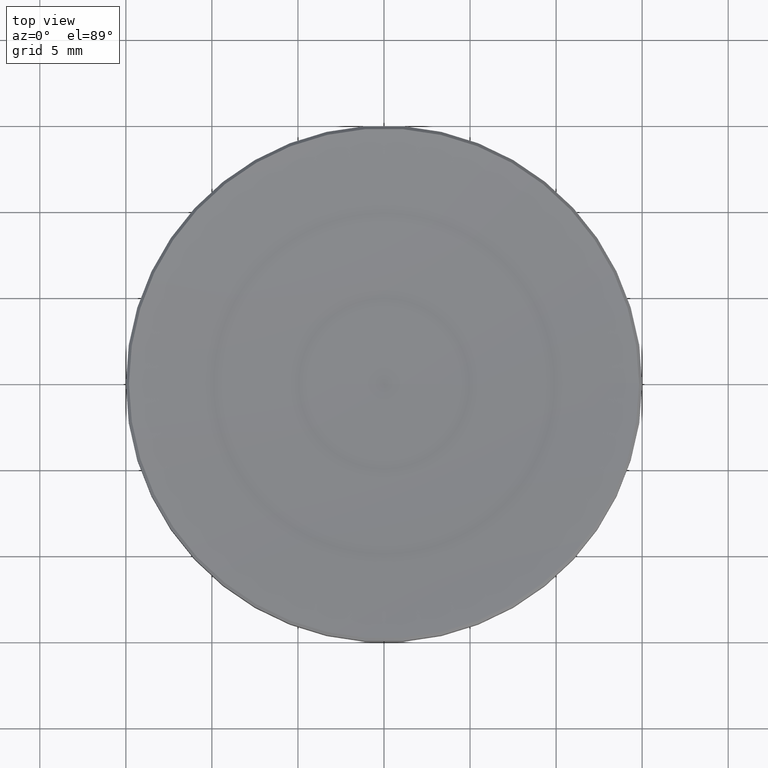
[diagram: clean part render]
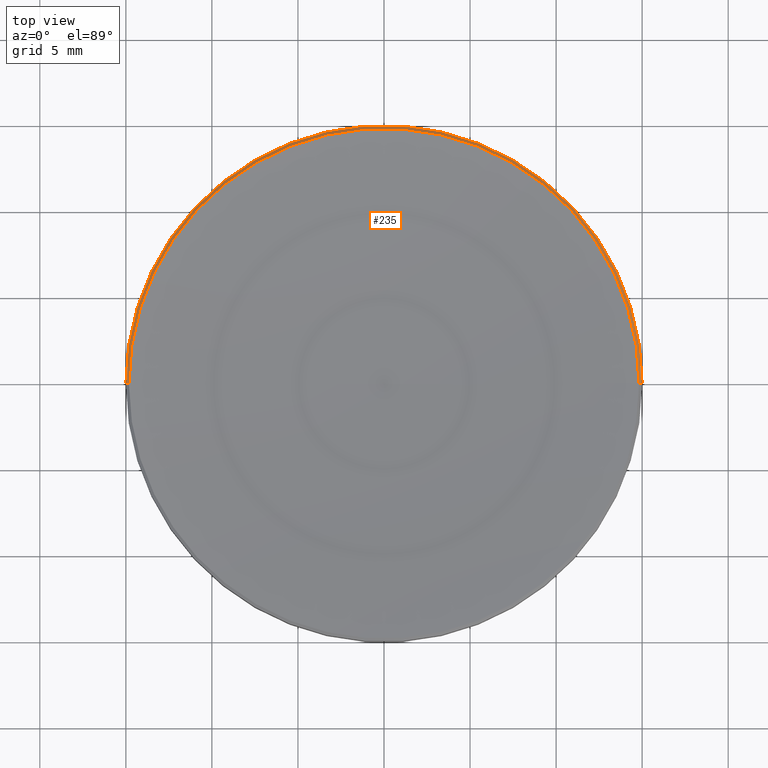
[diagram: same view with one face highlighted and labeled with its STEP entity id]
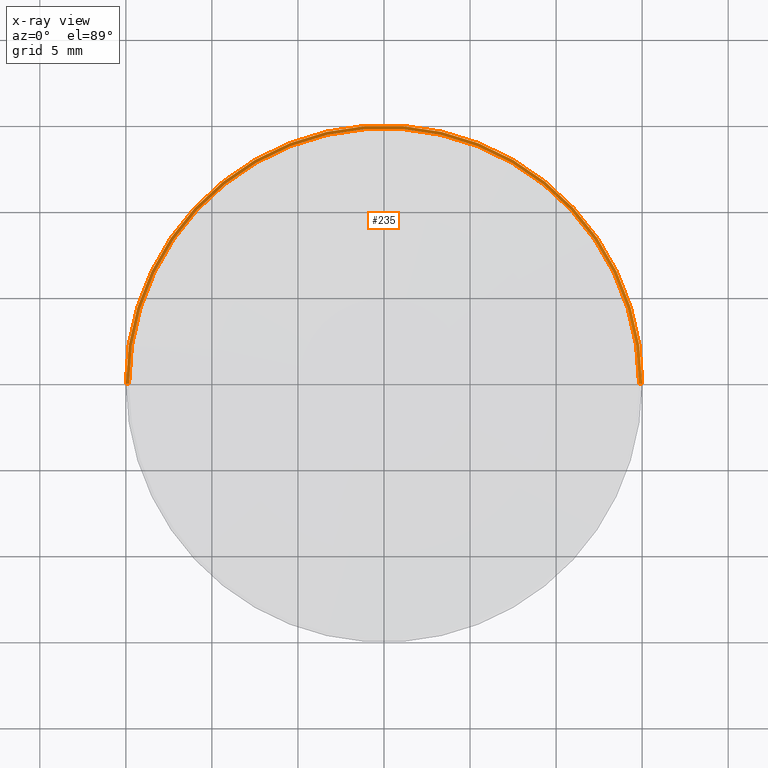
[diagram: x-ray of the same camera — body ghosted, the highlighted face saturated]
A machine part, top view. The second image highlights one B-rep face of the part: STEP entity #235.
The next image is the same camera in x-ray: the body ghosted, the highlighted face saturated — about 0% of this face is hidden behind the body in this view.
In plain terms, the highlighted conical surface has half-angle 45 deg.
Its self-contained STEP definition (entity closure, byte-faithful):
#4 = DIRECTION ( 'NONE',  ( 1.000000000000000000, 0.000000000000000000, 0.000000000000000000 ) ) ;
#18 = CARTESIAN_POINT ( 'NONE',  ( 14.82077471085186993, 1.815021431052878250E-15, 3.349225289148161089 ) ) ;
#22 = DIRECTION ( 'NONE',  ( 0.000000000000000000, 0.000000000000000000, -1.000000000000000000 ) ) ;
#47 = ORIENTED_EDGE ( 'NONE', *, *, #49, .F. ) ;
#49 = EDGE_CURVE ( 'NONE', #106, #146, #115, .T. ) ;
#52 = AXIS2_PLACEMENT_3D ( 'NONE', #101, #22, #245 ) ;
#53 = CARTESIAN_POINT ( 'NONE',  ( 0.000000000000000000, 0.000000000000000000, 3.349225289148161089 ) ) ;
#72 = AXIS2_PLACEMENT_3D ( 'NONE', #53, #124, #4 ) ;
#73 = CIRCLE ( 'NONE', #128, 15.00000000000000000 ) ;
#78 = EDGE_CURVE ( 'NONE', #146, #171, #93, .T. ) ;
#83 = CARTESIAN_POINT ( 'NONE',  ( -15.00000000000000000, 1.836970198721029589E-15, 3.170000000000006146 ) ) ;
#87 = EDGE_LOOP ( 'NONE', ( #47, #234, #253, #145 ) ) ;
#93 = LINE ( 'NONE', #223, #208 ) ;
#97 = DIRECTION ( 'NONE',  ( 0.7071067811864962804, 8.659560562354306700E-17, -0.7071067811865988650 ) ) ;
#101 = CARTESIAN_POINT ( 'NONE',  ( 0.000000000000000000, 0.000000000000000000, 3.349225289148161089 ) ) ;
#106 = VERTEX_POINT ( 'NONE', #264 ) ;
#115 = CIRCLE ( 'NONE', #72, 14.82077471085190723 ) ;
#119 = EDGE_CURVE ( 'NONE', #106, #126, #152, .T. ) ;
#124 = DIRECTION ( 'NONE',  ( -0.000000000000000000, -0.000000000000000000, 1.000000000000000000 ) ) ;
#126 = VERTEX_POINT ( 'NONE', #241 ) ;
#128 = AXIS2_PLACEMENT_3D ( 'NONE', #249, #204, #159 ) ;
#145 = ORIENTED_EDGE ( 'NONE', *, *, #78, .F. ) ;
#146 = VERTEX_POINT ( 'NONE', #149 ) ;
#149 = CARTESIAN_POINT ( 'NONE',  ( -14.82077471085196940, 1.815021431052890477E-15, 3.349225289148161089 ) ) ;
#152 = LINE ( 'NONE', #18, #227 ) ;
#153 = CONICAL_SURFACE ( 'NONE', #52, 14.82077471085186993, 0.7853981633973757814 ) ;
#159 = DIRECTION ( 'NONE',  ( -1.000000000000000000, 0.000000000000000000, 0.000000000000000000 ) ) ;
#171 = VERTEX_POINT ( 'NONE', #83 ) ;
#178 = FACE_OUTER_BOUND ( 'NONE', #87, .T. ) ;
#204 = DIRECTION ( 'NONE',  ( 0.000000000000000000, 0.000000000000000000, -1.000000000000000000 ) ) ;
#208 = VECTOR ( 'NONE', #239, 1000.000000000000000 ) ;
#213 = EDGE_CURVE ( 'NONE', #171, #126, #73, .T. ) ;
#223 = CARTESIAN_POINT ( 'NONE',  ( -14.82077471085186993, 0.000000000000000000, 3.349225289148161089 ) ) ;
#227 = VECTOR ( 'NONE', #97, 1000.000000000000000 ) ;
#234 = ORIENTED_EDGE ( 'NONE', *, *, #119, .T. ) ;
#235 = ADVANCED_FACE ( 'NONE', ( #178 ), #153, .T. ) ;
#239 = DIRECTION ( 'NONE',  ( -0.7071067811864962804, 0.000000000000000000, -0.7071067811865988650 ) ) ;
#241 = CARTESIAN_POINT ( 'NONE',  ( 15.00000000000000000, 0.000000000000000000, 3.170000000000006146 ) ) ;
#245 = DIRECTION ( 'NONE',  ( -1.000000000000000000, 0.000000000000000000, 0.000000000000000000 ) ) ;
#249 = CARTESIAN_POINT ( 'NONE',  ( 0.000000000000000000, 0.000000000000000000, 3.170000000000006146 ) ) ;
#253 = ORIENTED_EDGE ( 'NONE', *, *, #213, .F. ) ;
#264 = CARTESIAN_POINT ( 'NONE',  ( 14.82077471085196940, 0.000000000000000000, 3.349225289148161089 ) ) ;